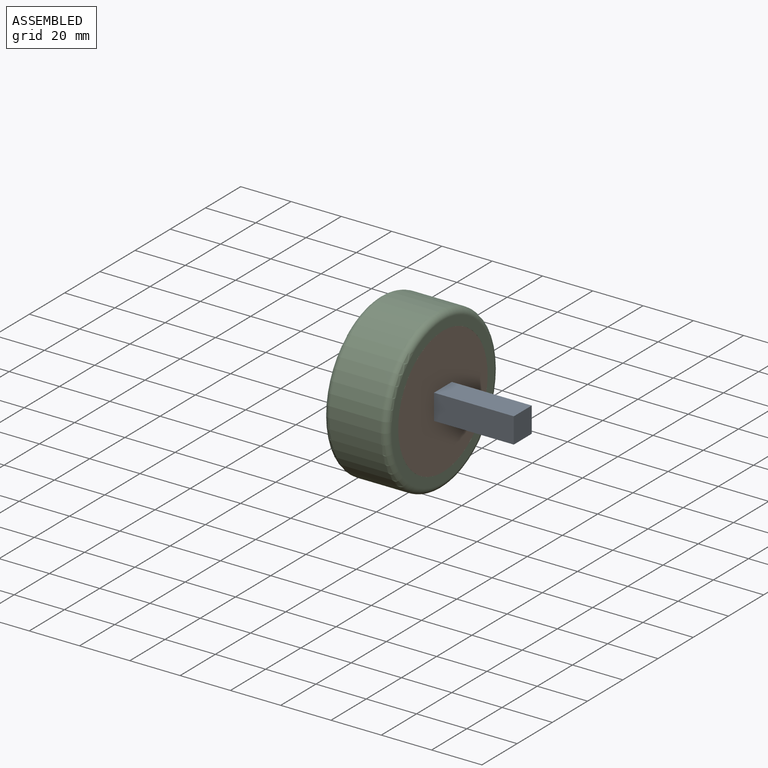
[diagram: assembled view]
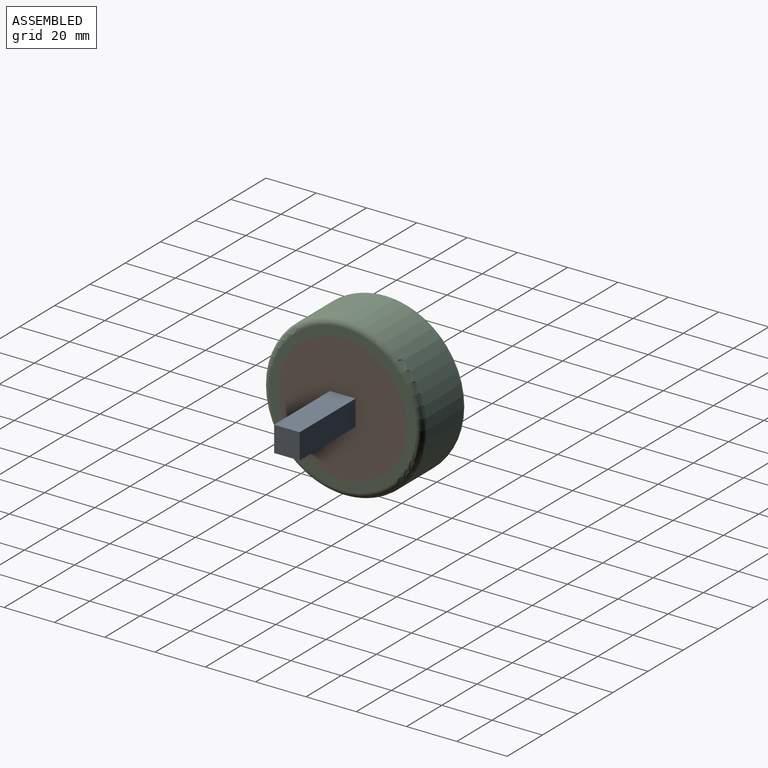
[diagram: assembled view, second angle]
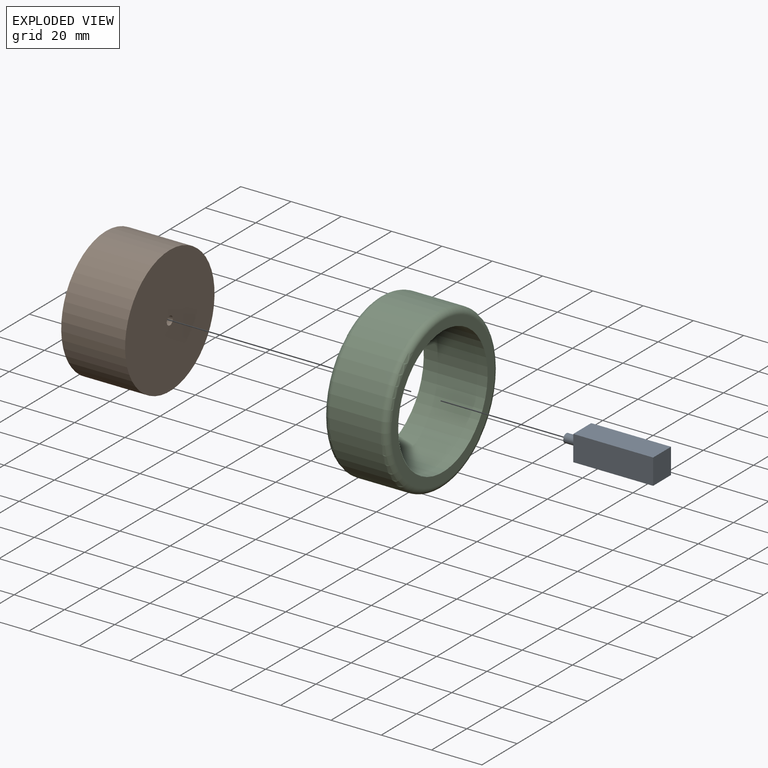
[diagram: exploded view]
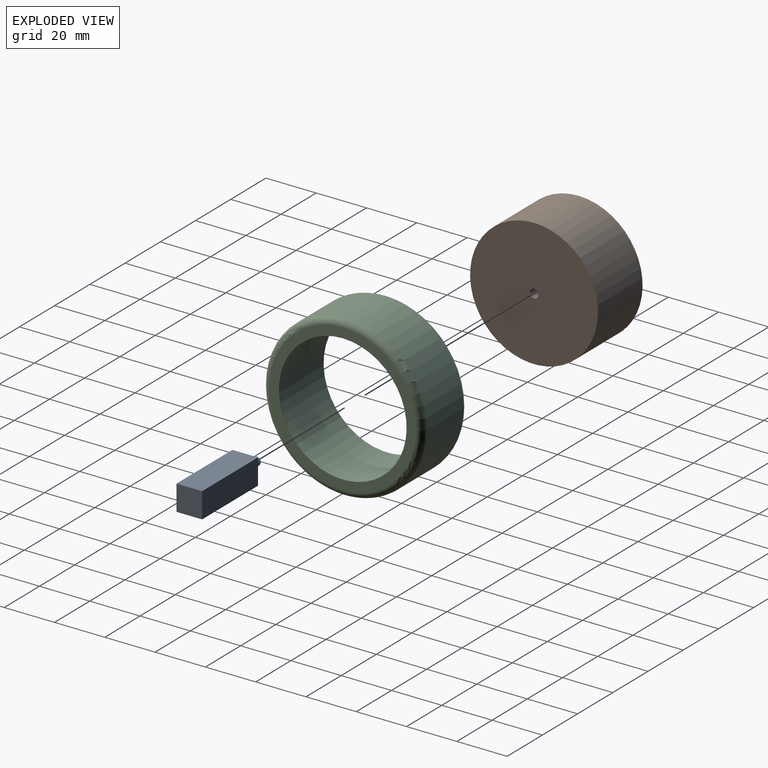
[diagram: exploded view, second angle]
ASSEMBLY  parts=3 mates=3
PART A: 8 faces, bbox 38.1x10.2x10.2 mm
  f0: plane 31.75x10.16mm, normal (0,1,0), area 322.6mm2, adj f1,f3,f4,f5
  f1: plane 31.75x10.16mm, normal (0,0,1), area 322.6mm2, adj f0,f2,f4,f5
  f2: plane 31.75x10.16mm, normal (0,-1,0), area 322.6mm2, adj f1,f3,f4,f5
  f3: plane 31.75x10.16mm, normal (0,0,-1), area 322.6mm2, adj f0,f2,f4,f5
  f4: plane 10.16x10.16mm, normal (1,0,0), area 103.2mm2, adj f0,f1,f2,f3
  f5: plane 10.16x10.16mm, normal (-1,0,0), area 94mm2, adj f0,f1,f2,f3,f6
  f6: cylinder r=1.71mm len=6.35mm, axis (1,0,0), area 68.4mm2, adj f5,f7
  f7: plane 3.43x3.43mm, normal (-1,0,0), area 9.2mm2, adj f6
PART B: 4 faces, bbox 50.8x25.4x50.8 mm
  f0: cylinder r=1.71mm len=25.4mm, axis (0,1,0), area 273.6mm2, adj f2,f3
  f1: cylinder r=25.4mm len=50.8mm, axis (0,1,0), area 4053.7mm2, adj f2,f3
  f2: plane 50.8x50.8mm, normal (0,-1,0), area 2017.6mm2, adj f0,f1
  f3: plane 50.8x50.8mm, normal (0,1,0), area 2017.6mm2, adj f0,f1
PART C: 6 faces, bbox 68.7x25.4x68.7 mm
  f0: cylinder r=25.4mm len=50.8mm, axis (0,1,0), area 4053.7mm2, adj f2,f3
  f1: cylinder r=31.75mm len=63.5mm, axis (0,1,0), area 4053.7mm2, adj f4,f5
  f2: plane 58.42x58.42mm, normal (0,-1,0), area 653.7mm2, adj f0,f4
  f3: plane 58.42x58.42mm, normal (0,1,0), area 653.7mm2, adj f0,f5
  f4: torus R=29.21mm, axis (0,-1,0), area 772.8mm2, adj f1,f2
  f5: torus R=29.21mm, axis (0,-1,0), area 772.8mm2, adj f1,f3
PLACE A t=(-90.04,28.66,-16.21)mm
PLACE B rot(axis=(-0.58,-0.58,-0.58),120deg) t=(-90.04,23.58,-11.13)mm
PLACE C rot(axis=(-0.58,-0.58,-0.58),120deg) t=(-90.04,23.58,-11.13)mm
MATE planar B.f0 <-> A.f6  axis (1,0,0) through (-90.04,23.58,-11.13)mm
MATE slider B.f0 <-> A.f6  axis (-1,0,0) through (-115.44,23.58,-11.13)mm
MATE fastened B.f0 <-> C.f0  axis (1,0,0) through (-102.74,23.58,-11.13)mm
